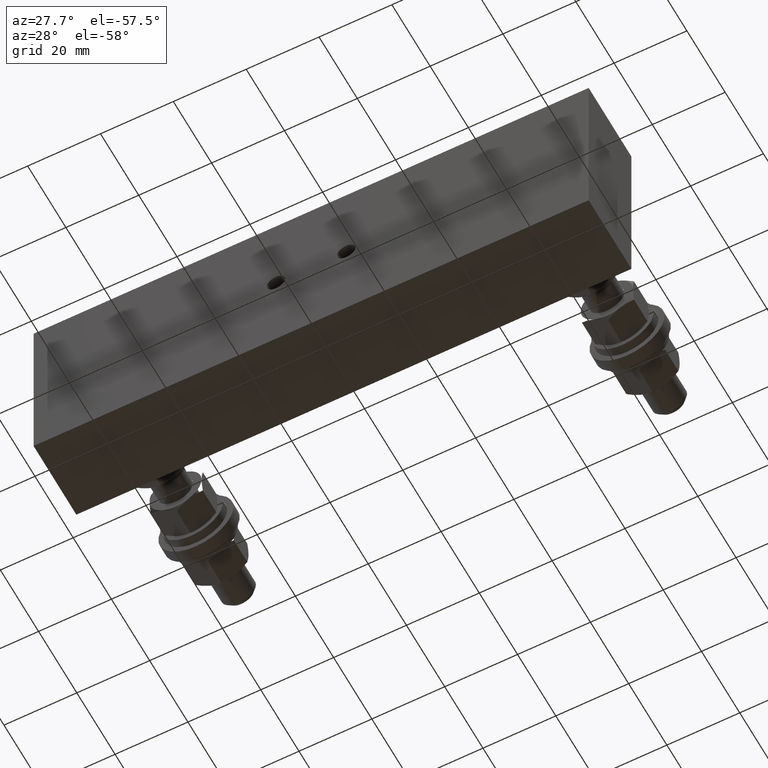
[diagram: clean part render]
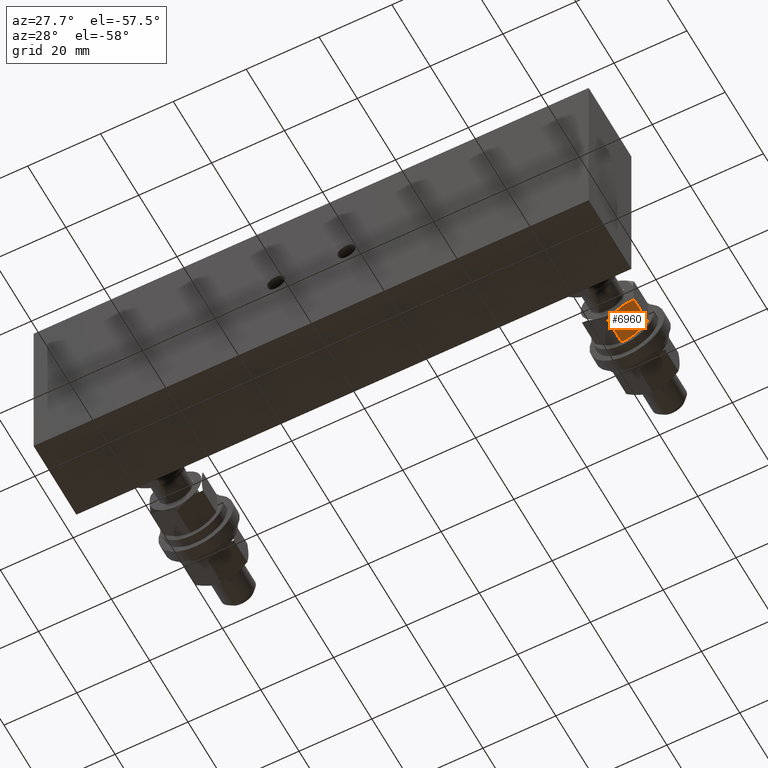
[diagram: same view with one face highlighted and labeled with its STEP entity id]
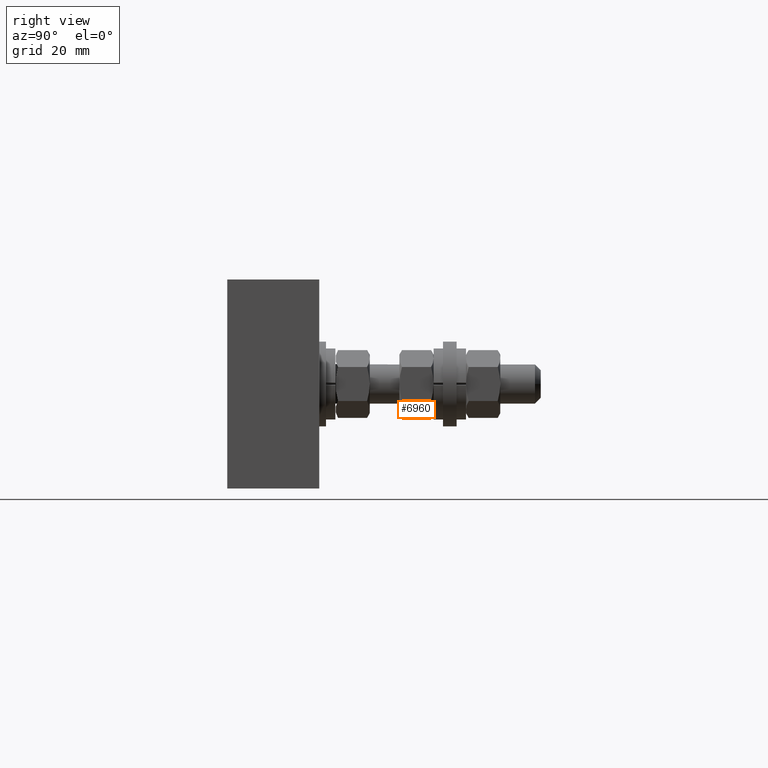
[diagram: same view with one face highlighted and labeled with its STEP entity id]
A machine part, auxiliary view. The second image highlights one B-rep face of the part: STEP entity #6960.
A second angle (right view) of the same face is appended — the face is thin or edge-on in the first view.
In plain terms, the highlighted planar face has unit normal (0.5, 0, -0.866).
Its self-contained STEP definition (entity closure, byte-faithful):
#26 = CARTESIAN_POINT ( 'NONE',  ( 4.941249999999999300, -0.6381249999999993900, -0.1623797632095850300 ) ) ;
#29 = CARTESIAN_POINT ( 'NONE',  ( 4.895073184291083700, -0.9551152948614365400, -0.1890399601894481900 ) ) ;
#207 = CARTESIAN_POINT ( 'NONE',  ( 4.753006134100931300, -0.6405190966474878500, -0.2710624098597069800 ) ) ;
#223 = CARTESIAN_POINT ( 'NONE',  ( 4.848261901998227200, -0.6410164893565829500, -0.2160664666223391400 ) ) ;
#321 = DIRECTION ( 'NONE',  ( 0.8660254037844386000, -1.745740669421566900E-015, 0.5000000000000000000 ) ) ;
#406 = CARTESIAN_POINT ( 'NONE',  ( 4.682946954103088400, -0.9487787479106207800, -0.3115110962906682500 ) ) ;
#714 = FACE_OUTER_BOUND ( 'NONE', #5269, .T. ) ;
#823 = CARTESIAN_POINT ( 'NONE',  ( 4.800625000000000100, -0.6381249999999990500, -0.2435696448143756200 ) ) ;
#838 = CARTESIAN_POINT ( 'NONE',  ( 4.895164642329078200, -0.6492818661386455800, -0.1889871568665915700 ) ) ;
#843 = CARTESIAN_POINT ( 'NONE',  ( 4.660000000000000100, -0.6632452367904162500, -0.3247595264191666100 ) ) ;
#920 = CARTESIAN_POINT ( 'NONE',  ( 4.941249999999999300, -0.9411297632095819700, -0.1623797632095860800 ) ) ;
#1126 = VERTEX_POINT ( 'NONE', #1848 ) ;
#1260 = DIRECTION ( 'NONE',  ( 0.0000000000000000000, -1.000000000000000000, -3.491481338843133000E-015 ) ) ;
#1271 = VERTEX_POINT ( 'NONE', #920 ) ;
#1281 = VERTEX_POINT ( 'NONE', #843 ) ;
#1416 = AXIS2_PLACEMENT_3D ( 'NONE', #7507, #3900, #321 ) ;
#1454 = CARTESIAN_POINT ( 'NONE',  ( 4.941249999999999300, -0.6632452367904107000, -0.1623797632095943000 ) ) ;
#1510 = DIRECTION ( 'NONE',  ( 0.0000000000000000000, -1.000000000000000000, -3.491481338843133000E-015 ) ) ;
#1567 = ORIENTED_EDGE ( 'NONE', *, *, #1757, .T. ) ;
#1757 = EDGE_CURVE ( 'NONE', #1271, #5312, #1784, .T. ) ;
#1784 = B_SPLINE_CURVE_WITH_KNOTS ( 'NONE', 3,
 ( #5549, #6200, #29, #4834, #6065, #3071 ),
 .UNSPECIFIED., .F., .F.,
 ( 4, 2, 4 ),
 ( 2.380732343146399400E-007, 0.002086870117958840400, 0.004173502162683366700 ),
 .UNSPECIFIED. ) ;
#1848 = CARTESIAN_POINT ( 'NONE',  ( 4.660000000000000100, -0.9411297632095814200, -0.3247595264191675500 ) ) ;
#2191 = CARTESIAN_POINT ( 'NONE',  ( 4.800625000000000100, -0.9662499999999991700, -0.2435696448143767900 ) ) ;
#2539 = EDGE_CURVE ( 'NONE', #5078, #3889, #6148, .T. ) ;
#2620 = CARTESIAN_POINT ( 'NONE',  ( 4.660000000000000100, -0.6632452367904162500, -0.3247595264191666100 ) ) ;
#3071 = CARTESIAN_POINT ( 'NONE',  ( 4.800625000000000100, -0.9662499999999991700, -0.2435696448143767900 ) ) ;
#3101 = CARTESIAN_POINT ( 'NONE',  ( 4.800625000000000100, -0.6381249999999990500, -0.2435696448143756200 ) ) ;
#3215 = CARTESIAN_POINT ( 'NONE',  ( 4.824547306761117800, -0.6387187491707496700, -0.2297580945662071600 ) ) ;
#3218 = ORIENTED_EDGE ( 'NONE', *, *, #5896, .F. ) ;
#3257 = CARTESIAN_POINT ( 'NONE',  ( 4.800625000000000100, -0.9662499999999991700, -0.2435696448143767900 ) ) ;
#3296 = ORIENTED_EDGE ( 'NONE', *, *, #7695, .T. ) ;
#3370 = CARTESIAN_POINT ( 'NONE',  ( 4.752988098001770500, -0.9633585106434149300, -0.2710728230064138900 ) ) ;
#3641 = B_SPLINE_CURVE_WITH_KNOTS ( 'NONE', 3,
 ( #2620, #6764, #3793, #207, #4418, #823 ),
 .UNSPECIFIED., .F., .F.,
 ( 4, 2, 4 ),
 ( 2.380732342882715100E-007, 0.002086870117958830000, 0.004173502162683371100 ),
 .UNSPECIFIED. ) ;
#3793 = CARTESIAN_POINT ( 'NONE',  ( 4.706176815708916500, -0.6492597051385622400, -0.2980993294393043900 ) ) ;
#3805 = CARTESIAN_POINT ( 'NONE',  ( 4.800625000000000100, -0.6381249999999990500, -0.2435696448143756200 ) ) ;
#3889 = VERTEX_POINT ( 'NONE', #4163 ) ;
#3900 = DIRECTION ( 'NONE',  ( 0.5000000000000001100, 3.023711536277457400E-015, -0.8660254037844387100 ) ) ;
#3985 = CARTESIAN_POINT ( 'NONE',  ( 4.706085357670919400, -0.9550931338613520800, -0.2981521327621627400 ) ) ;
#4163 = CARTESIAN_POINT ( 'NONE',  ( 4.941249999999999300, -0.6632452367904107000, -0.1623797632095943000 ) ) ;
#4418 = CARTESIAN_POINT ( 'NONE',  ( 4.776666646423967300, -0.6381249999999989400, -0.2574020067008386800 ) ) ;
#4426 = CARTESIAN_POINT ( 'NONE',  ( 4.860039883839046800, -0.6427182716134735000, -0.2092664456360310000 ) ) ;
#4532 = ORIENTED_EDGE ( 'NONE', *, *, #5581, .T. ) ;
#4555 = VECTOR ( 'NONE', #1260, 39.37007874015748100 ) ;
#4567 = ORIENTED_EDGE ( 'NONE', *, *, #2539, .T. ) ;
#4591 = CARTESIAN_POINT ( 'NONE',  ( 4.660000000000000100, -0.9411297632095814200, -0.3247595264191675500 ) ) ;
#4825 = LINE ( 'NONE', #5708, #6434 ) ;
#4834 = CARTESIAN_POINT ( 'NONE',  ( 4.848243865899069000, -0.9638559033525102600, -0.2160768797690453300 ) ) ;
#5026 = CARTESIAN_POINT ( 'NONE',  ( 4.918303045896908400, -0.6555962520893762200, -0.1756281933380863000 ) ) ;
#5078 = VERTEX_POINT ( 'NONE', #3101 ) ;
#5269 = EDGE_LOOP ( 'NONE', ( #3218, #6259, #4567, #4532, #1567, #3296 ) ) ;
#5312 = VERTEX_POINT ( 'NONE', #3257 ) ;
#5549 = CARTESIAN_POINT ( 'NONE',  ( 4.941249999999999300, -0.9411297632095819700, -0.1623797632095860800 ) ) ;
#5581 = EDGE_CURVE ( 'NONE', #3889, #1271, #7555, .T. ) ;
#5598 = CARTESIAN_POINT ( 'NONE',  ( 4.812559392952986000, -0.6381249999999989400, -0.2366793198303544200 ) ) ;
#5708 = CARTESIAN_POINT ( 'NONE',  ( 4.660000000000000100, -0.6381249999999988300, -0.3247595264191664400 ) ) ;
#5793 = CARTESIAN_POINT ( 'NONE',  ( 4.788690607047013400, -0.9662499999999991700, -0.2504599697983981300 ) ) ;
#5896 = EDGE_CURVE ( 'NONE', #1281, #1126, #4825, .T. ) ;
#6065 = CARTESIAN_POINT ( 'NONE',  ( 4.824583353576033900, -0.9662499999999992800, -0.2297372829279138400 ) ) ;
#6148 = B_SPLINE_CURVE_WITH_KNOTS ( 'NONE', 3,
 ( #3805, #5598, #3215, #223, #4426, #838, #5026, #1454 ),
 .UNSPECIFIED., .F., .F.,
 ( 4, 2, 2, 4 ),
 ( 0.004173502162683371100, 0.005212917775738964500, 0.006252333388794557900, 0.008331164614905711700 ),
 .UNSPECIFIED. ) ;
#6200 = CARTESIAN_POINT ( 'NONE',  ( 4.918245611783987700, -0.9487978926149391900, -0.1756613529386431800 ) ) ;
#6259 = ORIENTED_EDGE ( 'NONE', *, *, #6872, .T. ) ;
#6434 = VECTOR ( 'NONE', #1510, 39.37007874015748100 ) ;
#6764 = CARTESIAN_POINT ( 'NONE',  ( 4.683004388216011700, -0.6555771073850590300, -0.3114779366901097000 ) ) ;
#6872 = EDGE_CURVE ( 'NONE', #1281, #5078, #3641, .T. ) ;
#6950 = B_SPLINE_CURVE_WITH_KNOTS ( 'NONE', 3,
 ( #2191, #5793, #6990, #3370, #7583, #3985, #406, #4591 ),
 .UNSPECIFIED., .F., .F.,
 ( 4, 2, 2, 4 ),
 ( 0.004173502162683366700, 0.005212917775738987000, 0.006252333388794606400, 0.008331164614905847000 ),
 .UNSPECIFIED. ) ;
#6960 = ADVANCED_FACE ( 'NONE', ( #714 ), #7455, .T. ) ;
#6990 = CARTESIAN_POINT ( 'NONE',  ( 4.776702693238880700, -0.9656562508292484400, -0.2573811950625456400 ) ) ;
#7455 = PLANE ( 'NONE',  #1416 ) ;
#7507 = CARTESIAN_POINT ( 'NONE',  ( 4.660000000000000100, -0.6381249999999988300, -0.3247595264191664400 ) ) ;
#7555 = LINE ( 'NONE', #26, #4555 ) ;
#7583 = CARTESIAN_POINT ( 'NONE',  ( 4.741210116160950800, -0.9616567283865242700, -0.2778728439927226100 ) ) ;
#7695 = EDGE_CURVE ( 'NONE', #5312, #1126, #6950, .T. ) ;